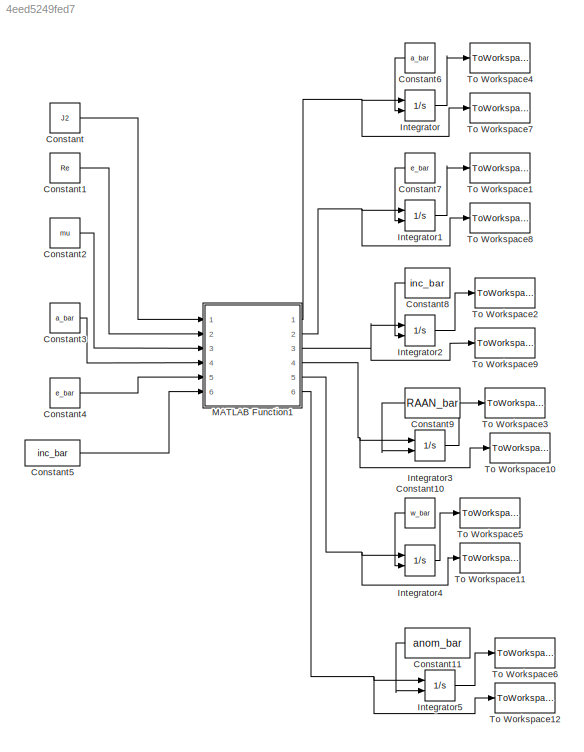
MODEL slx_4eed5249fed7
KIND model
CONFIG AbsTol = auto
CONFIG EnableMultiTasking = off
CONFIG FixedStep = stepSize
CONFIG MaxStep = auto
CONFIG MinStep = auto
CONFIG RelTol = 1e-3
CONFIG SampleTimeConstraint = Unconstrained
CONFIG Solver = FixedStepAuto
CONFIG SolverName = FixedStepAuto
CONFIG StartTime = 0.0
CONFIG StopTime = stopTime
BLOCK [Constant] Constant
  Value = J2
BLOCK [Constant] Constant1
  Value = Re
BLOCK [Constant] Constant10
  Value = w_bar
BLOCK [Constant] Constant11
  Value = anom_bar
BLOCK [Constant] Constant2
  Value = mu
BLOCK [Constant] Constant3
  Value = a_bar
BLOCK [Constant] Constant4
  Value = e_bar
BLOCK [Constant] Constant5
  Value = inc_bar
BLOCK [Constant] Constant6
  Value = a_bar
BLOCK [Constant] Constant7
  Value = e_bar
BLOCK [Constant] Constant8
  Value = inc_bar
BLOCK [Constant] Constant9
  Value = RAAN_bar
BLOCK [Integrator] Integrator
  InitialConditionSource = external
  Ports = [2, 1]
BLOCK [Integrator] Integrator1
  InitialConditionSource = external
  Ports = [2, 1]
BLOCK [Integrator] Integrator2
  InitialConditionSource = external
  Ports = [2, 1]
BLOCK [Integrator] Integrator3
  InitialConditionSource = external
  Ports = [2, 1]
BLOCK [Integrator] Integrator4
  InitialConditionSource = external
  Ports = [2, 1]
BLOCK [Integrator] Integrator5
  InitialConditionSource = external
  Ports = [2, 1]
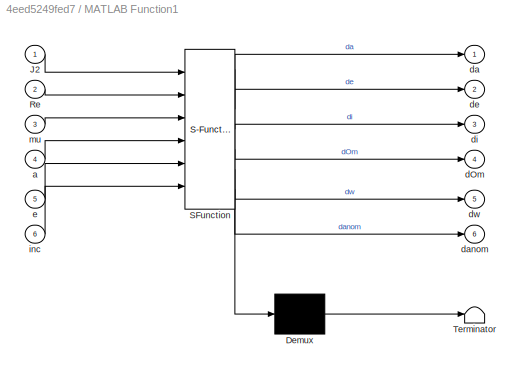
BLOCK [SubSystem] MATLAB Function1
  ErrorFcn = Stateflow.Translate.translate
  PermitHierarchicalResolution = ExplicitOnly
  Ports = [6, 6]
  RequestExecContextInheritance = off
  SFBlockType = MATLAB Function
  TreatAsAtomicUnit = on
BLOCK [Demux] MATLAB Function1/ Demux 
  Outputs = 1
  Ports = [1, 1]
BLOCK [S-Function] MATLAB Function1/ SFunction 
  EnableBusSupport = on
  FunctionName = sf_sfun
  PortCounts = [6 7]
  Ports = [6, 7]
  SFcnIsStateOwnerBlock = off
  SFunctionDeploymentMode = off
  Tag = Stateflow S-Function MeanOE 4
BLOCK [Terminator] MATLAB Function1/ Terminator 
BLOCK [Inport] MATLAB Function1/J2
  IconDisplay = Port number
BLOCK [Inport] MATLAB Function1/Re
  IconDisplay = Port number
  Port = 2
BLOCK [Inport] MATLAB Function1/a
  IconDisplay = Port number
  Port = 4
BLOCK [Outport] MATLAB Function1/dOm
  IconDisplay = Port number
  Port = 4
BLOCK [Outport] MATLAB Function1/da
  IconDisplay = Port number
BLOCK [Outport] MATLAB Function1/danom
  IconDisplay = Port number
  Port = 6
BLOCK [Outport] MATLAB Function1/de
  IconDisplay = Port number
  Port = 2
BLOCK [Outport] MATLAB Function1/di
  IconDisplay = Port number
  Port = 3
BLOCK [Outport] MATLAB Function1/dw
  IconDisplay = Port number
  Port = 5
BLOCK [Inport] MATLAB Function1/e
  IconDisplay = Port number
  Port = 5
BLOCK [Inport] MATLAB Function1/inc
  IconDisplay = Port number
  Port = 6
BLOCK [Inport] MATLAB Function1/mu
  IconDisplay = Port number
  Port = 3
BLOCK [ToWorkspace] To Workspace1
  FixptAsFi = on
  MaxDataPoints = inf
  Ports = [1]
  SampleTime = -1
  Save2DSignal = 3-D array (concatenate along third dimension)
  VariableName = mean_e
BLOCK [ToWorkspace] To Workspace10
  FixptAsFi = on
  MaxDataPoints = inf
  Ports = [1]
  SampleTime = -1
  Save2DSignal = 3-D array (concatenate along third dimension)
  VariableName = mean_dRAAN
BLOCK [ToWorkspace] To Workspace11
  FixptAsFi = on
  MaxDataPoints = inf
  Ports = [1]
  SampleTime = -1
  Save2DSignal = 3-D array (concatenate along third dimension)
  VariableName = mean_dw
BLOCK [ToWorkspace] To Workspace12
  FixptAsFi = on
  MaxDataPoints = inf
  Ports = [1]
  SampleTime = -1
  Save2DSignal = 3-D array (concatenate along third dimension)
  VariableName = mean_danom
BLOCK [ToWorkspace] To Workspace2
  FixptAsFi = on
  MaxDataPoints = inf
  Ports = [1]
  SampleTime = -1
  Save2DSignal = 3-D array (concatenate along third dimension)
  VariableName = mean_inc
BLOCK [ToWorkspace] To Workspace3
  FixptAsFi = on
  MaxDataPoints = inf
  Ports = [1]
  SampleTime = -1
  Save2DSignal = 3-D array (concatenate along third dimension)
  VariableName = mean_RAAN
BLOCK [ToWorkspace] To Workspace4
  FixptAsFi = on
  MaxDataPoints = inf
  Ports = [1]
  SampleTime = -1
  Save2DSignal = 3-D array (concatenate along third dimension)
  VariableName = mean_a
BLOCK [ToWorkspace] To Workspace5
  FixptAsFi = on
  MaxDataPoints = inf
  Ports = [1]
  SampleTime = -1
  Save2DSignal = 3-D array (concatenate along third dimension)
  VariableName = mean_w
BLOCK [ToWorkspace] To Workspace6
  FixptAsFi = on
  MaxDataPoints = inf
  Ports = [1]
  SampleTime = -1
  Save2DSignal = 3-D array (concatenate along third dimension)
  VariableName = mean_anom
BLOCK [ToWorkspace] To Workspace7
  FixptAsFi = on
  MaxDataPoints = inf
  Ports = [1]
  SampleTime = -1
  Save2DSignal = 3-D array (concatenate along third dimension)
  VariableName = mean_da
BLOCK [ToWorkspace] To Workspace8
  FixptAsFi = on
  MaxDataPoints = inf
  Ports = [1]
  SampleTime = -1
  Save2DSignal = 3-D array (concatenate along third dimension)
  VariableName = mean_de
BLOCK [ToWorkspace] To Workspace9
  FixptAsFi = on
  MaxDataPoints = inf
  Ports = [1]
  SampleTime = -1
  Save2DSignal = 3-D array (concatenate along third dimension)
  VariableName = mean_dinc
LINE Constant10:1 -> Integrator4:2
LINE Constant11:1 -> Integrator5:2
LINE Constant1:1 -> MATLAB Function1:2
LINE Constant2:1 -> MATLAB Function1:3
LINE Constant3:1 -> MATLAB Function1:4
LINE Constant4:1 -> MATLAB Function1:5
LINE Constant5:1 -> MATLAB Function1:6
LINE Constant6:1 -> Integrator:2
LINE Constant7:1 -> Integrator1:2
LINE Constant8:1 -> Integrator2:2
LINE Constant9:1 -> Integrator3:2
LINE Constant:1 -> MATLAB Function1:1
LINE Integrator1:1 -> To Workspace1:1
LINE Integrator2:1 -> To Workspace2:1
LINE Integrator3:1 -> To Workspace3:1
LINE Integrator4:1 -> To Workspace5:1
LINE Integrator5:1 -> To Workspace6:1
LINE Integrator:1 -> To Workspace4:1
NET MATLAB Function1:1 -> Integrator:1, To Workspace7:1
NET MATLAB Function1:2 -> Integrator1:1, To Workspace8:1
NET MATLAB Function1:3 -> Integrator2:1, To Workspace9:1
NET MATLAB Function1:4 -> Integrator3:1, To Workspace10:1
NET MATLAB Function1:5 -> Integrator4:1, To Workspace11:1
NET MATLAB Function1:6 -> Integrator5:1, To Workspace12:1
note: NET lines group one-source signal fan-out (src -> all destinations, sorted); 1:1 wires keep LINE
CHART MATLAB Function1 states=1 transitions=1
  STATE_LABEL 'eML_blk_kernel()'
  STATE_LABEL 'SCRIPT:\nfunction [da, de, di, dOm, dw, danom] = MeanOE(J2,Re,mu,a,e,inc)\n\np = a*(1-e^2);\nn = sqrt(mu/a^3);\neta = sqrt(1-e^2);\n\n\nda = 0;\nde = 0;\ndi = 0;\ndOm = -3/2*J2*(Re/p)^2*n*cosd(inc);\ndw = 3/4*J2*(Re/p)^2*n*(5*cosd(inc)^2-1);\ndanom = 3/4*J2*(Re/p)^2*n*eta*(5*cosd(inc)^2-1);\n\n\n\n'
